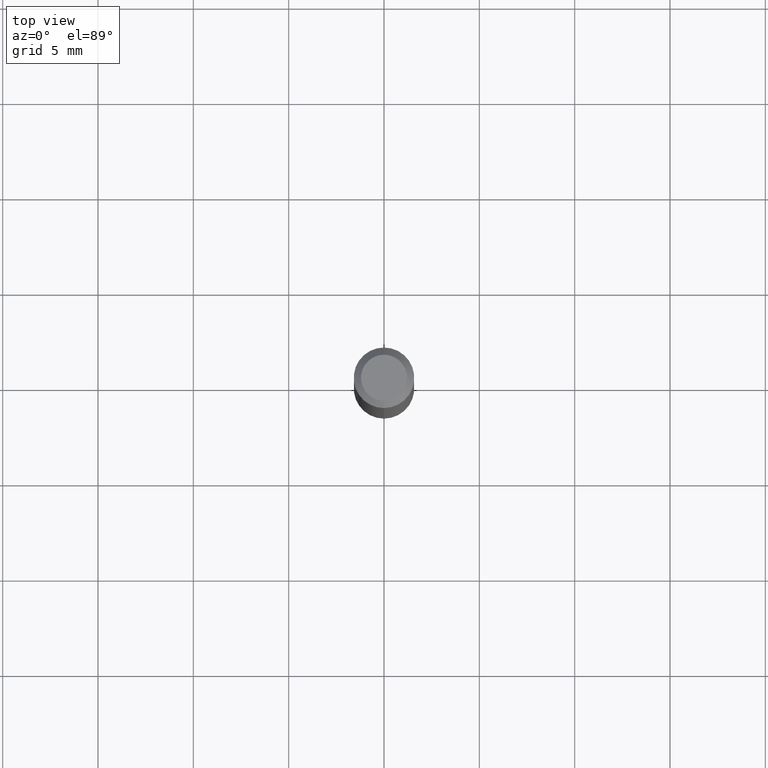
[diagram: clean part render]
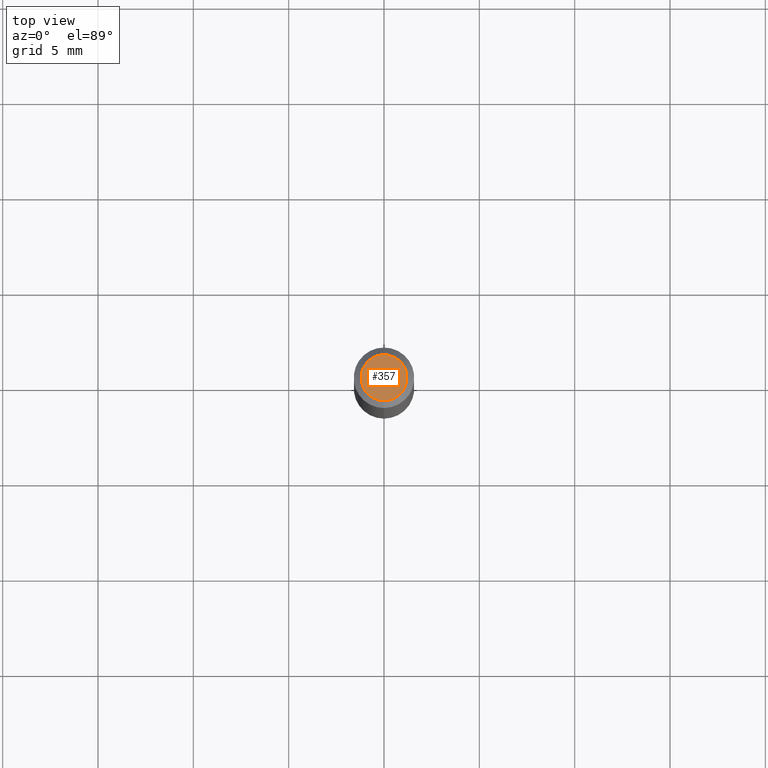
[diagram: same view with one face highlighted and labeled with its STEP entity id]
A machine part, top view. The second image highlights one B-rep face of the part: STEP entity #357.
In plain terms, the highlighted planar face has unit normal (0, -0, -1).
Its self-contained STEP definition (entity closure, byte-faithful):
#27 = VERTEX_POINT ( 'NONE', #454 ) ;
#42 = VERTEX_POINT ( 'NONE', #302 ) ;
#125 = FACE_OUTER_BOUND ( 'NONE', #282, .T. ) ;
#131 = DIRECTION ( 'NONE',  ( -2.445467730606780965E-29, 3.491482879132568905E-15, 1.000000000000000000 ) ) ;
#143 = ORIENTED_EDGE ( 'NONE', *, *, #227, .T. ) ;
#152 = CIRCLE ( 'NONE', #300, 0.04749999999999999362 ) ;
#153 = EDGE_CURVE ( 'NONE', #27, #42, #152, .T. ) ;
#161 = CARTESIAN_POINT ( 'NONE',  ( -5.856619264596289913E-45, 8.361707511414266109E-31, 2.394887158516345188E-16 ) ) ;
#203 = CARTESIAN_POINT ( 'NONE',  ( -5.856619264596289913E-45, 8.361707511414266109E-31, 2.394887158516345188E-16 ) ) ;
#227 = EDGE_CURVE ( 'NONE', #42, #27, #345, .T. ) ;
#232 = DIRECTION ( 'NONE',  ( 2.445467730606780685E-29, -3.491482879132568905E-15, -1.000000000000000000 ) ) ;
#279 = DIRECTION ( 'NONE',  ( -6.982962677686266711E-15, -1.000000000000000000, 3.491482879132570088E-15 ) ) ;
#282 = EDGE_LOOP ( 'NONE', ( #143, #485 ) ) ;
#289 = AXIS2_PLACEMENT_3D ( 'NONE', #391, #232, #304 ) ;
#300 = AXIS2_PLACEMENT_3D ( 'NONE', #203, #131, #484 ) ;
#302 = CARTESIAN_POINT ( 'NONE',  ( 3.840629472727447874E-16, 0.04749999999999999362, 7.364327909283752044E-17 ) ) ;
#304 = DIRECTION ( 'NONE',  ( 6.982962677686265922E-15, 1.000000000000000000, -3.491482879132568905E-15 ) ) ;
#320 = AXIS2_PLACEMENT_3D ( 'NONE', #161, #326, #279 ) ;
#326 = DIRECTION ( 'NONE',  ( -2.445467730606780965E-29, 3.491482879132568905E-15, 1.000000000000000000 ) ) ;
#345 = CIRCLE ( 'NONE', #320, 0.04749999999999999362 ) ;
#357 = ADVANCED_FACE ( 'NONE', ( #125 ), #445, .F. ) ;
#391 = CARTESIAN_POINT ( 'NONE',  ( 3.316907271900976096E-16, 0.04749999999999999362, -4.610107883297974511E-17 ) ) ;
#445 = PLANE ( 'NONE',  #289 ) ;
#454 = CARTESIAN_POINT ( 'NONE',  ( -3.773273898774340269E-16, -0.04749999999999999362, 4.053341526104315664E-16 ) ) ;
#484 = DIRECTION ( 'NONE',  ( -6.982962677686266711E-15, -1.000000000000000000, 3.491482879132570088E-15 ) ) ;
#485 = ORIENTED_EDGE ( 'NONE', *, *, #153, .T. ) ;